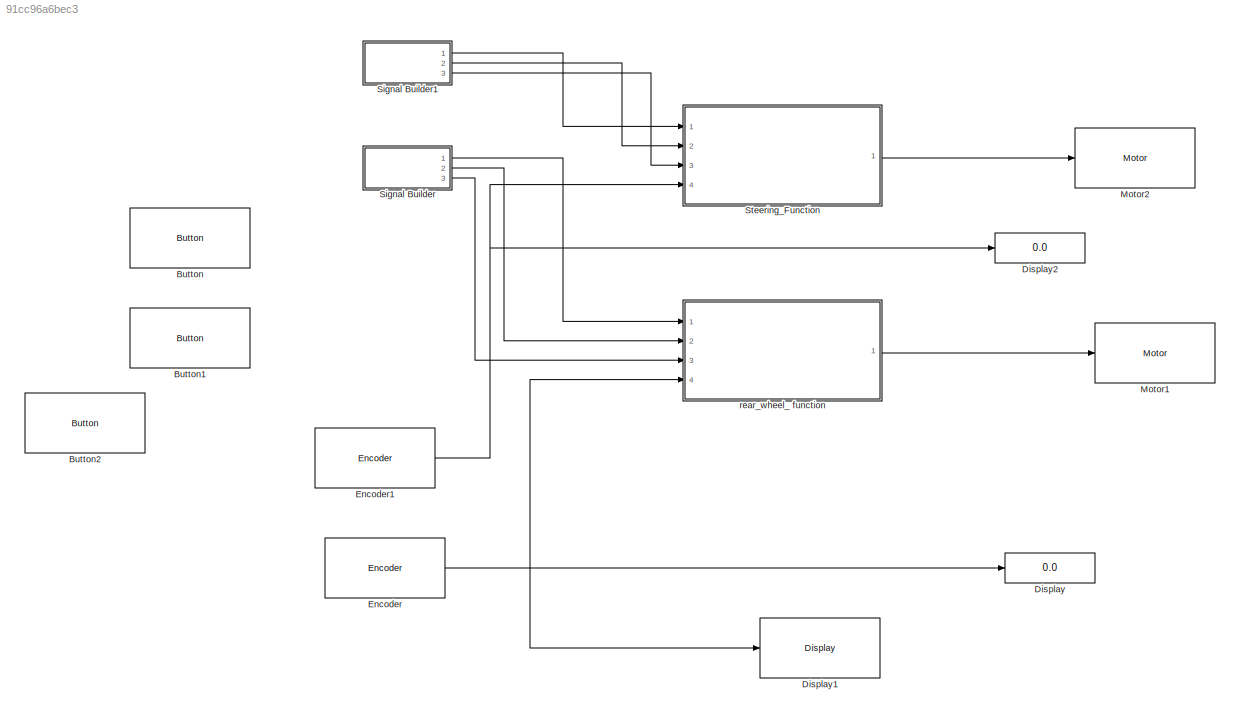
MODEL slx_91cc96a6bec3
KIND model
CONFIG AbsTol = auto
CONFIG EnableMultiTasking = on
CONFIG FixedStep = auto
CONFIG MaxStep = auto
CONFIG MinStep = auto
CONFIG RelTol = 1e-3
CONFIG SampleTimeConstraint = Unconstrained
CONFIG Solver = FixedStepAuto
CONFIG SolverName = FixedStepAuto
CONFIG StartTime = 0.0
CONFIG StopTime = inf
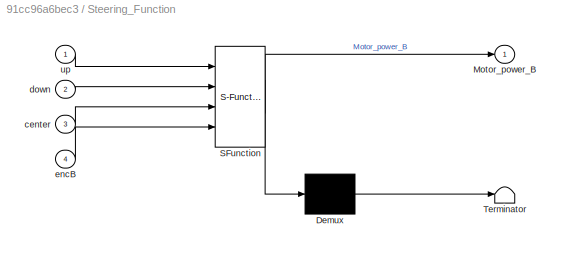
BLOCK [SubSystem]  Steering_Function
  ErrorFcn = Stateflow.Translate.translate
  PermitHierarchicalResolution = ExplicitOnly
  Ports = [4, 1]
  RequestExecContextInheritance = off
  SFBlockType = MATLAB Function
  TreatAsAtomicUnit = on
  Variant = off
BLOCK [Demux]  Steering_Function/ Demux 
  Outputs = 1
  Ports = [1, 1]
BLOCK [S-Function]  Steering_Function/ SFunction 
  EnableBusSupport = on
  FunctionName = sf_sfun
  PortCounts = [4 2]
  Ports = [4, 2]
  SFcnIsStateOwnerBlock = off
  SFunctionDeploymentMode = off
  Tag = Stateflow S-Function testbench_rearwheel_parking 1
BLOCK [Terminator]  Steering_Function/ Terminator 
BLOCK [Outport]  Steering_Function/Motor_power_B
  IconDisplay = Port number
BLOCK [Inport]  Steering_Function/center
  IconDisplay = Port number
  Port = 3
BLOCK [Inport]  Steering_Function/down
  IconDisplay = Port number
  Port = 2
BLOCK [Inport]  Steering_Function/encB
  IconDisplay = Port number
  Port = 4
BLOCK [Inport]  Steering_Function/up
  IconDisplay = Port number
BLOCK [Reference] Button  REF=legoev3lib/Button
  Ports = [0, 1]
  SourceBlock = legoev3lib/Button
  SourceType = LEGO MINDSTORMS EV3 Button
BLOCK [Reference] Button1  REF=legoev3lib/Button
  Ports = [0, 1]
  SourceBlock = legoev3lib/Button
  SourceType = LEGO MINDSTORMS EV3 Button
BLOCK [Reference] Button2  REF=legoev3lib/Button
  Ports = [0, 1]
  SourceBlock = legoev3lib/Button
  SourceType = LEGO MINDSTORMS EV3 Button
BLOCK [Display] Display
  Decimation = 1
  Format = decimal (Stored Integer)
  Ports = [1]
BLOCK [Reference] Display1  REF=legoev3lib/Display
  Ports = [1]
  SourceBlock = legoev3lib/Display
  SourceType = LEGO MINDSTORMS EV3 Display
BLOCK [Display] Display2
  Decimation = 1
  Format = decimal (Stored Integer)
  Ports = [1]
BLOCK [Reference] Encoder  REF=legoev3lib/Encoder
  Ports = [0, 1]
  SourceBlock = legoev3lib/Encoder
  SourceType = LEGO MINDSTORMS EV3 Encoder
BLOCK [Reference] Encoder1  REF=legoev3lib/Encoder
  Ports = [0, 1]
  SourceBlock = legoev3lib/Encoder
  SourceType = LEGO MINDSTORMS EV3 Encoder
BLOCK [Reference] Motor1  REF=legoev3lib/Motor
  Ports = [1]
  SourceBlock = legoev3lib/Motor
  SourceType = LEGO MINDSTORMS EV3 Motor
BLOCK [Reference] Motor2  REF=legoev3lib/Motor
  Ports = [1]
  SourceBlock = legoev3lib/Motor
  SourceType = LEGO MINDSTORMS EV3 Motor
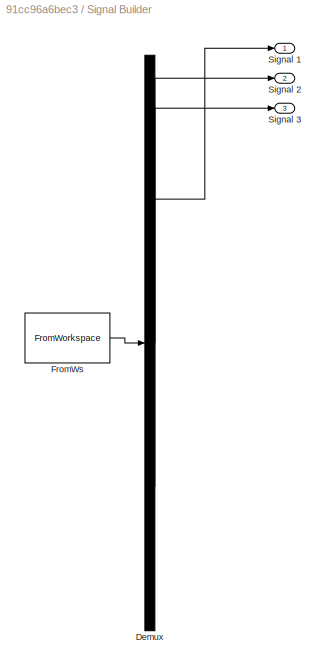
BLOCK [SubSystem] Signal Builder
  ClipboardFcn = sigbuilder_block('clipboard');
  CloseFcn = sigbuilder_block('close');
  ContinueFcn = sigbuilder_block('continue');
  CopyFcn = sigbuilder_block('copy');
  DeleteFcn = sigbuilder_block('delete');
  LoadFcn = sigbuilder_block('load');
  MaskHideContents = on
  ModelCloseFcn = sigbuilder_block('modelClose');
  NameChangeFcn = sigbuilder_block('namechange');
  OpenFcn = sigbuilder_block('open',[438 199 636 400 ]);
  PauseFcn = sigbuilder_block('pause');
  Ports = [0, 3]
  PreSaveFcn = sigbuilder_block('preSave');
  RequestExecContextInheritance = off
  StartFcn = sigbuilder_block('start');
  StopFcn = sigbuilder_block('stop');
  Tag = STV Subsys
  Variant = off
BLOCK [Demux] Signal Builder/Demux
  Outputs = 3
  Ports = [1, 3]
  Tag = STV Demux
BLOCK [FromWorkspace] Signal Builder/FromWs
  SampleTime = 0
  Tag = STV FromWs
  VariableName = tuvar
  ZeroCross = on
BLOCK [Outport] Signal Builder/Signal 1
  IconDisplay = Port number
  Tag = STV Outport
BLOCK [Outport] Signal Builder/Signal 2
  IconDisplay = Port number
  Port = 2
  Tag = STV Outport
BLOCK [Outport] Signal Builder/Signal 3
  IconDisplay = Port number
  Port = 3
  Tag = STV Outport
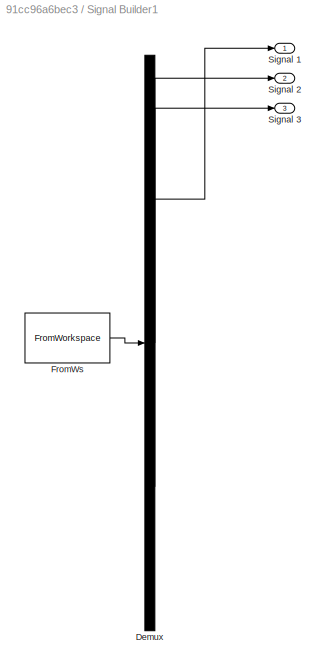
BLOCK [SubSystem] Signal Builder1
  ClipboardFcn = sigbuilder_block('clipboard');
  CloseFcn = sigbuilder_block('close');
  ContinueFcn = sigbuilder_block('continue');
  CopyFcn = sigbuilder_block('copy');
  DeleteFcn = sigbuilder_block('delete');
  LoadFcn = sigbuilder_block('load');
  MaskHideContents = on
  ModelCloseFcn = sigbuilder_block('modelClose');
  NameChangeFcn = sigbuilder_block('namechange');
  OpenFcn = sigbuilder_block('open',[438 199 636 400 ]);
  PauseFcn = sigbuilder_block('pause');
  Ports = [0, 3]
  PreSaveFcn = sigbuilder_block('preSave');
  RequestExecContextInheritance = off
  StartFcn = sigbuilder_block('start');
  StopFcn = sigbuilder_block('stop');
  Tag = STV Subsys
  Variant = off
BLOCK [Demux] Signal Builder1/Demux
  Outputs = 3
  Ports = [1, 3]
  Tag = STV Demux
BLOCK [FromWorkspace] Signal Builder1/FromWs
  SampleTime = 0
  Tag = STV FromWs
  VariableName = tuvar
  ZeroCross = on
BLOCK [Outport] Signal Builder1/Signal 1
  IconDisplay = Port number
  Tag = STV Outport
BLOCK [Outport] Signal Builder1/Signal 2
  IconDisplay = Port number
  Port = 2
  Tag = STV Outport
BLOCK [Outport] Signal Builder1/Signal 3
  IconDisplay = Port number
  Port = 3
  Tag = STV Outport
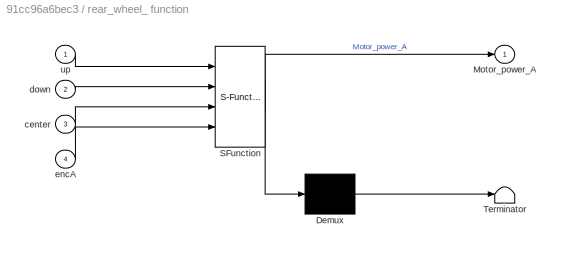
BLOCK [SubSystem] rear_wheel_ function
  ErrorFcn = Stateflow.Translate.translate
  PermitHierarchicalResolution = ExplicitOnly
  Ports = [4, 1]
  RequestExecContextInheritance = off
  SFBlockType = MATLAB Function
  TreatAsAtomicUnit = on
  Variant = off
BLOCK [Demux] rear_wheel_ function/ Demux 
  Outputs = 1
  Ports = [1, 1]
BLOCK [S-Function] rear_wheel_ function/ SFunction 
  EnableBusSupport = on
  FunctionName = sf_sfun
  PortCounts = [4 2]
  Ports = [4, 2]
  SFcnIsStateOwnerBlock = off
  SFunctionDeploymentMode = off
  Tag = Stateflow S-Function testbench_rearwheel_parking 2
BLOCK [Terminator] rear_wheel_ function/ Terminator 
BLOCK [Outport] rear_wheel_ function/Motor_power_A
  IconDisplay = Port number
BLOCK [Inport] rear_wheel_ function/center
  IconDisplay = Port number
  Port = 3
BLOCK [Inport] rear_wheel_ function/down
  IconDisplay = Port number
  Port = 2
BLOCK [Inport] rear_wheel_ function/encA
  IconDisplay = Port number
  Port = 4
BLOCK [Inport] rear_wheel_ function/up
  IconDisplay = Port number
LINE  Steering_Function:1 -> Motor2:1
NET Encoder1:1 ->  Steering_Function:4, Display2:1
NET Encoder:1 -> Display1:1, Display:1, rear_wheel_ function:4
LINE Signal Builder1:1 ->  Steering_Function:1
LINE Signal Builder1:2 ->  Steering_Function:2
LINE Signal Builder1:3 ->  Steering_Function:3
LINE Signal Builder:1 -> rear_wheel_ function:1
LINE Signal Builder:2 -> rear_wheel_ function:2
LINE Signal Builder:3 -> rear_wheel_ function:3
LINE rear_wheel_ function:1 -> Motor1:1
note: NET lines group one-source signal fan-out (src -> all destinations, sorted); 1:1 wires keep LINE
CHART  Steering_Function states=1 transitions=1
  STATE_LABEL 'eML_blk_kernel()'
  STATE_LABEL 'SCRIPT:\nfunction Motor_power_B=fcn(up,down,center,encB)\n%#codegen\nif(up==1)&&(encB<=225)\n   Motor_power_B=70;\nelseif(down==1)&&(encB>=-225)\n   Motor_power_B=-70;\nelseif (center==1)&&(encB<=-50)\n %%  while(encB~=0)\n   Motor_power_B=70;\nelse\n   Motor_power_B=0;\nend\nend\n\n \n    '
CHART rear_wheel_ function states=1 transitions=1
  STATE_LABEL 'eML_blk_kernel()'
  STATE_LABEL 'SCRIPT:\nfunction Motor_power_A=fcn(up, down,center,encA)\n%#codegen\nif (up==1)&&(encA>=-500)\n  Motor_power_A = -50;\nelseif (down==1)&&(encA>=-1000)\n     Motor_power_A = -50;\nelseif (center==1)&&(encA<=-900)\n    Motor_power_A=50;\nelse\n    Motor_power_A=0; \nend\nend\n\n \n    '
